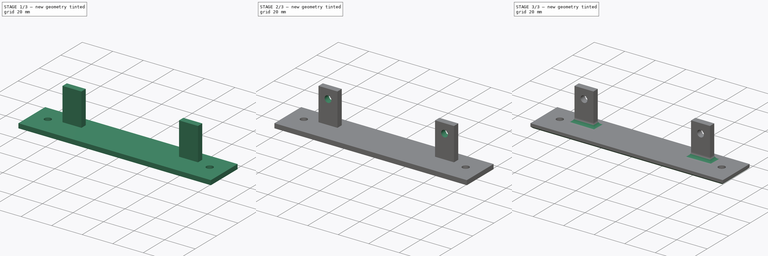
[diagram: build sequence overview — one tinted view per stage of 3, left to right]
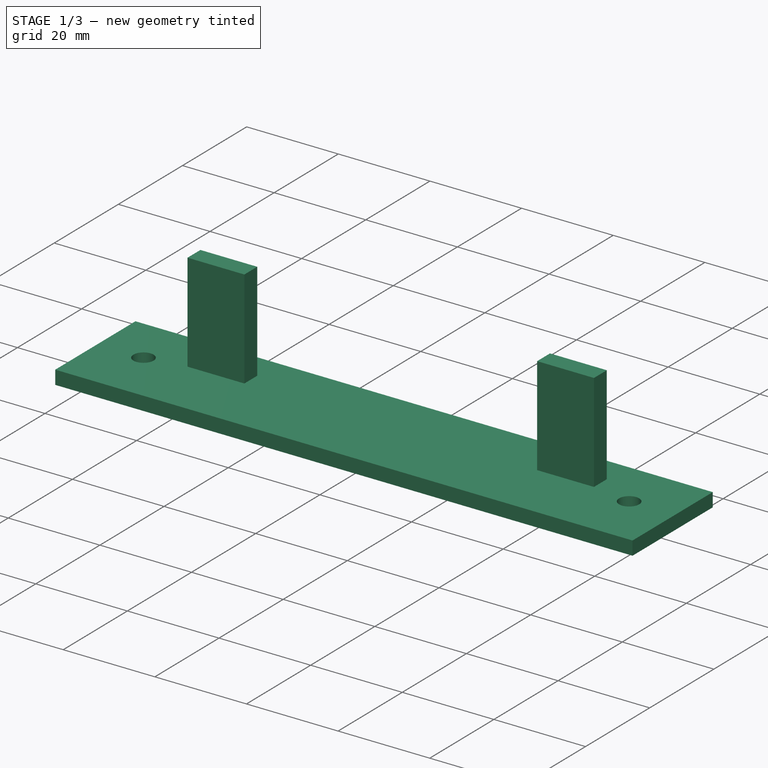
[diagram: stage 1 of 3 — iso view after this stage's code; geometry added in this stage tinted green]
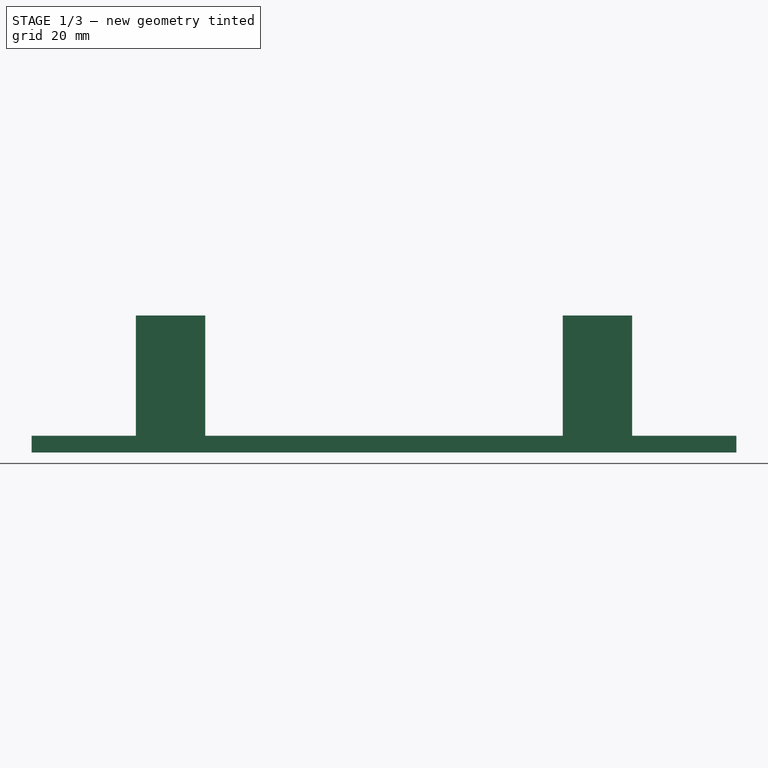
[diagram: stage 1 of 3 — front view after this stage's code; geometry added in this stage tinted green]
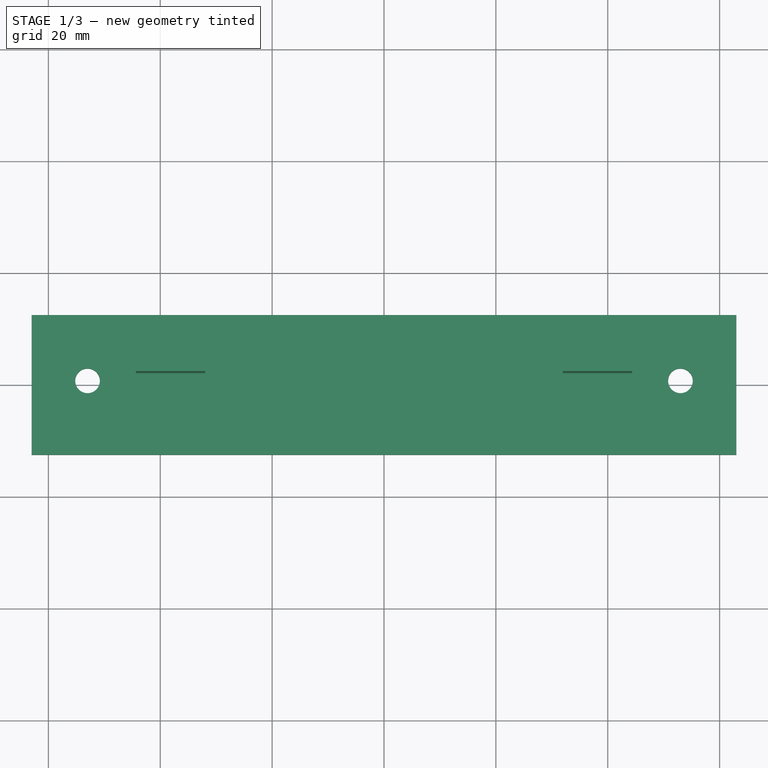
[diagram: stage 1 of 3 — top view after this stage's code; geometry added in this stage tinted green]
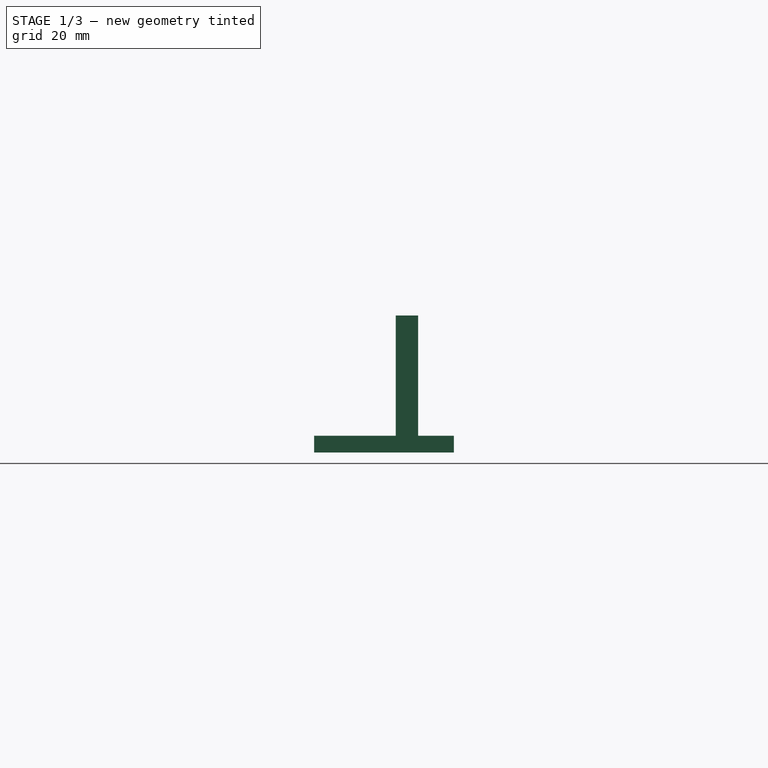
[diagram: stage 1 of 3 — right view after this stage's code; geometry added in this stage tinted green]
FCSTD DOCUMENT  (FreeCAD 0.15R4671 (Git))
Label: Card Faceplate Blank
License: All rights reserved
LicenseURL: http://en.wikipedia.org/wiki/All_rights_reserved
objects: Sketcher::SketchObject×3, PartDesign::Pad×2, PartDesign::Pocket×1, PartDesign::Mirrored×1, PartDesign::Chamfer×1, PartDesign::Fillet×1
note: 12 computed .brp shape members not serialized (recipe doc carries the construction recipe); baked Part::Feature solids carry a one-line shape summary decoded from their .brp

FEATURE [Sketcher::SketchObject] Sketch  label="Faceplate"
  sketch-geometry (6):
    g0: LineSegment StartX=-63 StartY=12.5 StartZ=0 EndX=63 EndY=12.5 EndZ=0
    g1: LineSegment StartX=63 StartY=12.5 StartZ=0 EndX=63 EndY=-12.5 EndZ=0
    g2: LineSegment StartX=63 StartY=-12.5 StartZ=0 EndX=-63 EndY=-12.5 EndZ=0
    g3: LineSegment StartX=-63 StartY=-12.5 StartZ=0 EndX=-63 EndY=12.5 EndZ=0
    g4: Circle CenterX=-53 CenterY=0.726 CenterZ=0 NormalX=0 NormalY=0 NormalZ=1 Radius=2.2
    g5: Circle CenterX=53 CenterY=0.726 CenterZ=0 NormalX=0 NormalY=0 NormalZ=1 Radius=2.2
  constraints (17):
    c: Coincident(g0,g1)
    c: Coincident(g1,g2)
    c: Coincident(g2,g3)
    c: Coincident(g3,g0)
    c: Horizontal(g0)
    c: Horizontal(g2)
    c: Vertical(g1)
    c: Vertical(g3)
    c: Distance(g3) = 25
    c: Distance(g0) = 126
    c: Symmetric(g0,g0,g-2)
    c: Symmetric(g0,g2,g-1)
    c: Equal(g5,g4)
    c: Radius(g4) = 2.2
    c: Symmetric(g4,g5,g-2)
    c: DistanceY(g0,g4) = -11.774
    c: DistanceX(g4,g0) = -10
FEATURE [PartDesign::Pad] Pad  label="Make Plate"
  Length = 3
  Length2 = 100
  Sketch = -> Sketch
  Type = 0
FEATURE [Sketcher::SketchObject] Sketch001  label="PCB Tabs"
  ExternalGeometry = -> [Pad]
  Placement = pos=(0,0,3) rot=(0,0,1;0rad)
  Support = -> Pad [Face8]
  sketch-geometry (10):
    g0: LineSegment StartX=-44.354 StartY=6.108 StartZ=0 EndX=-31.954 EndY=6.108 EndZ=0
    g1: LineSegment StartX=-31.954 StartY=6.108 StartZ=0 EndX=-31.954 EndY=2.108 EndZ=0
    g2: LineSegment StartX=-31.954 StartY=2.108 StartZ=0 EndX=-44.354 EndY=2.108 EndZ=0
    g3: LineSegment StartX=-44.354 StartY=2.108 StartZ=0 EndX=-44.354 EndY=6.108 EndZ=0
    g4: LineSegment StartX=31.954 StartY=6.108 StartZ=0 EndX=44.354 EndY=6.108 EndZ=0
    g5: LineSegment StartX=44.354 StartY=6.108 StartZ=0 EndX=44.354 EndY=2.108 EndZ=0
    g6: LineSegment StartX=44.354 StartY=2.108 StartZ=0 EndX=31.954 EndY=2.108 EndZ=0
    g7: LineSegment StartX=31.954 StartY=2.108 StartZ=0 EndX=31.954 EndY=6.108 EndZ=0
    g8: LineSegment [constr] StartX=-38.154 StartY=6.108 StartZ=0 EndX=-38.154 EndY=2.108 EndZ=0
    g9: LineSegment [constr] StartX=38.154 StartY=6.108 StartZ=0 EndX=38.154 EndY=2.108 EndZ=0
  constraints (31):
    c: Coincident(g0,g1)
    c: Coincident(g1,g2)
    c: Coincident(g2,g3)
    c: Coincident(g3,g0)
    c: Horizontal(g0)
    c: Horizontal(g2)
    c: Vertical(g1)
    c: Vertical(g3)
    c: Distance(g0) = 12.4
    c: Distance(g1) = 4
    c: Coincident(g4,g5)
    c: Coincident(g5,g6)
    c: Coincident(g6,g7)
    c: Coincident(g7,g4)
    c: Horizontal(g4)
    c: Horizontal(g6)
    c: Vertical(g5)
    c: Vertical(g7)
    c: Equal(g4,g0)
    c: Equal(g7,g1)
    c: Symmetric(g0,g4,g-2)
    c: Vertical(g8)
    c: PointOnObject(g8,g0)
    c: PointOnObject(g8,g2)
    c: Symmetric(g0,g0,g8)
    c: Vertical(g9)
    c: PointOnObject(g9,g4)
    c: PointOnObject(g9,g6)
    c: Symmetric(g4,g4,g9)
    c: Distance(g9,g8) = 76.308
    c: DistanceY(g-3,g2) = -10.392
FEATURE [PartDesign::Pad] Pad001  label="Make Tabs"
  Length = 21.497
  Length2 = 100
  Sketch = -> Sketch001
  Type = 0
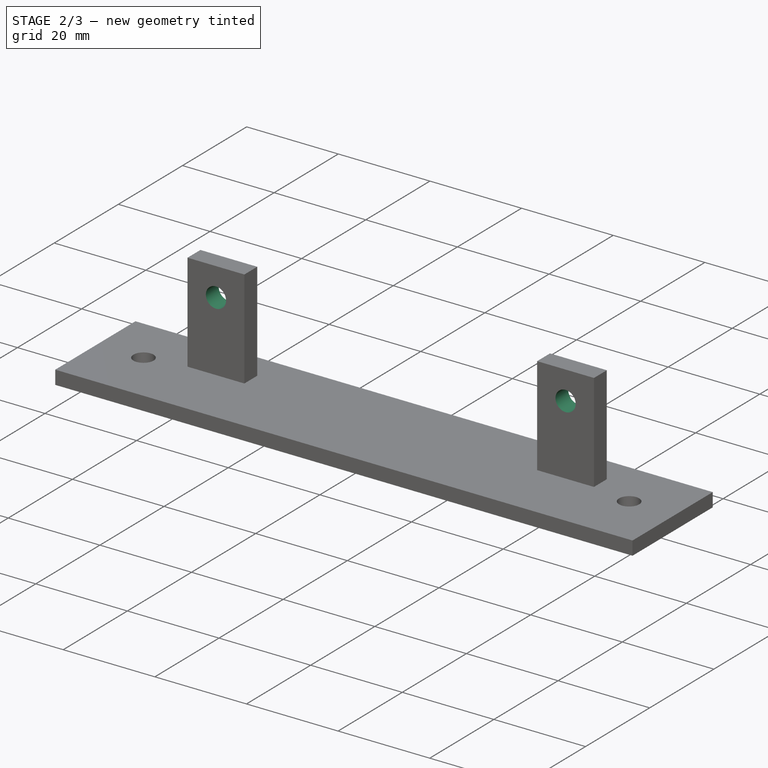
[diagram: stage 2 of 3 — iso view after this stage's code; geometry added in this stage tinted green]
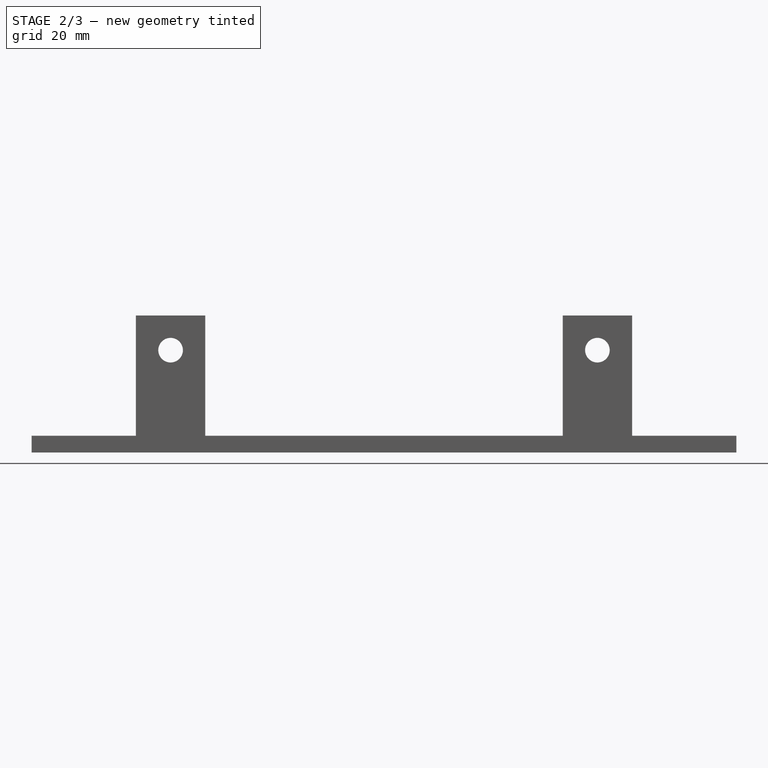
[diagram: stage 2 of 3 — front view after this stage's code; geometry added in this stage tinted green]
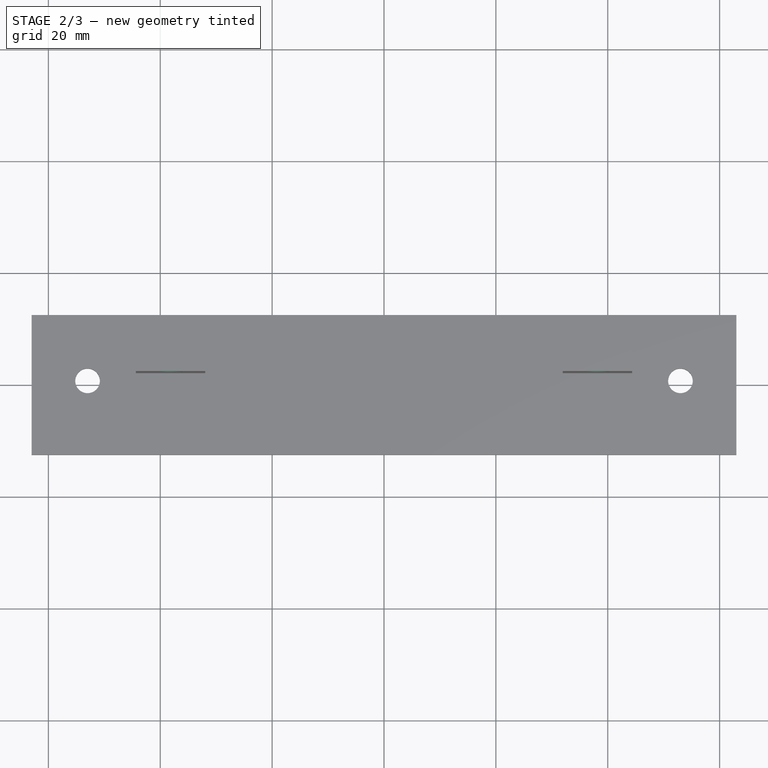
[diagram: stage 2 of 3 — top view after this stage's code; geometry added in this stage tinted green]
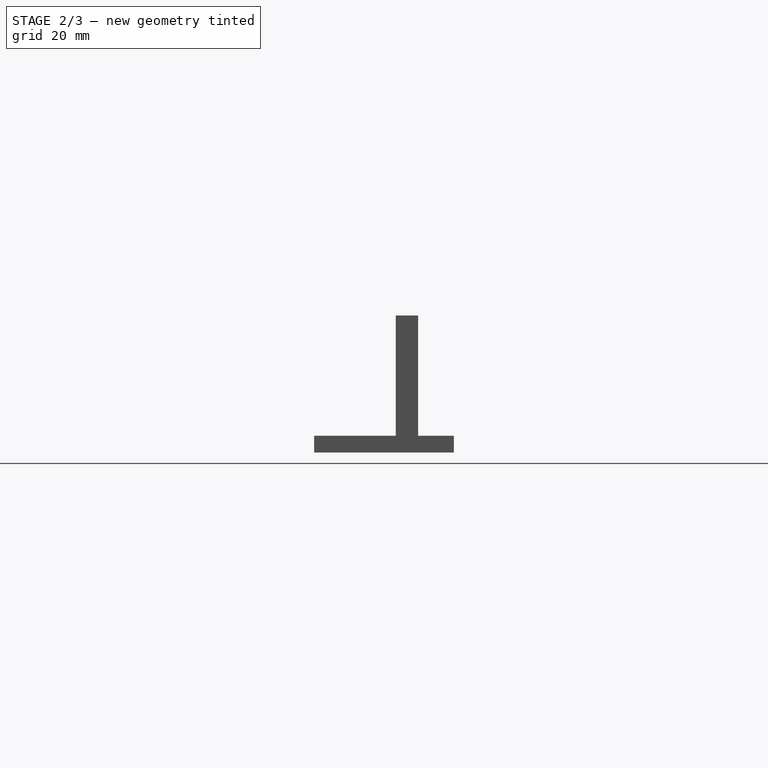
[diagram: stage 2 of 3 — right view after this stage's code; geometry added in this stage tinted green]
FEATURE [Sketcher::SketchObject] Sketch002  label="Holes for PCB Mounting"
  ExternalGeometry = -> [Pad001]
  Placement = pos=(0,2.108,0) rot=(1,0,0;1.5708rad)
  Support = -> Pad001 [Face11]
  sketch-geometry (2):
    g0: Circle CenterX=-38.154 CenterY=18.297 CenterZ=0 NormalX=0 NormalY=0 NormalZ=1 Radius=2.2
    g1: LineSegment [constr] StartX=-38.154 StartY=24.497 StartZ=0 EndX=-38.154 EndY=20.497 EndZ=0
  constraints (6):
    c: Radius(g0) = 2.2
    c: Vertical(g1)
    c: Perpendicular(g1,g0) = 4.71239
    c: PointOnObject(g1,g-3)
    c: Symmetric(g-3,g-3,g1)
    c: DistanceY(g1,g1) = 4
FEATURE [PartDesign::Pocket] Pocket  label="Add Hole"
  Length = 5
  Sketch = -> Sketch002
  Type = 2
FEATURE [PartDesign::Mirrored] Mirrored  label="Add second hole too"
  MirrorPlane = -> Sketch002 [V_Axis]
  Originals = -> [Pocket]
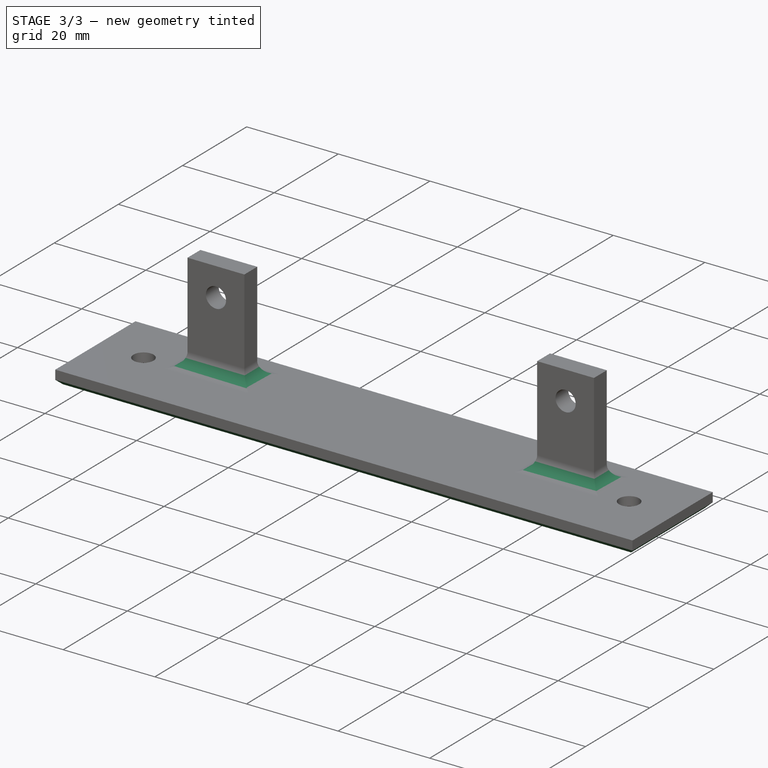
[diagram: stage 3 of 3 — iso view after this stage's code; geometry added in this stage tinted green]
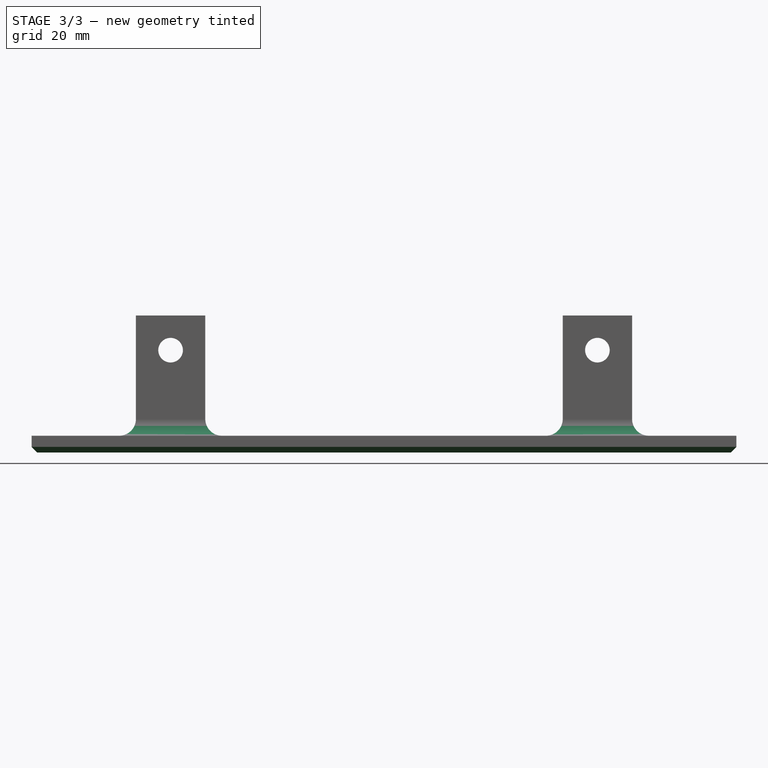
[diagram: stage 3 of 3 — front view after this stage's code; geometry added in this stage tinted green]
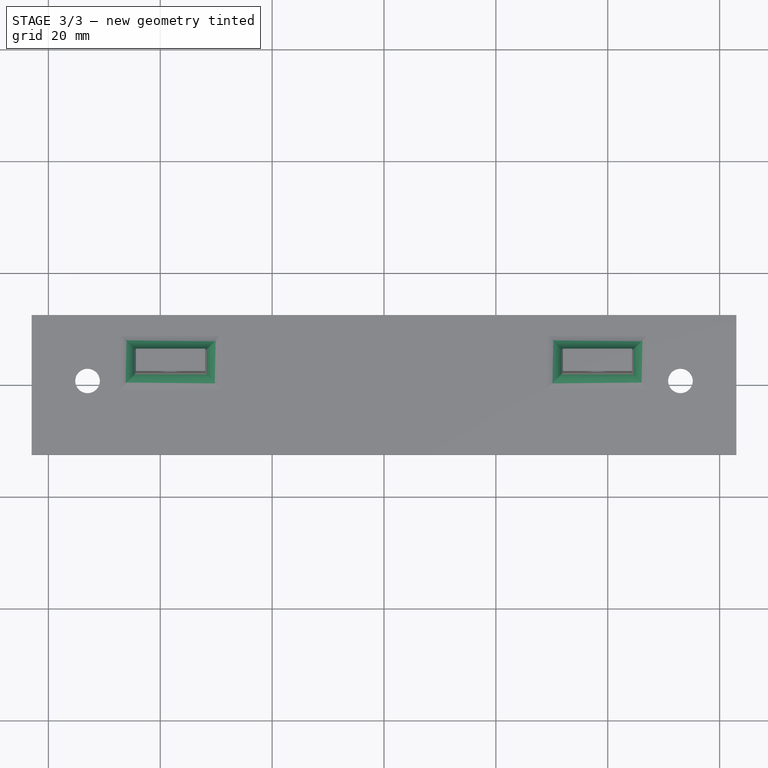
[diagram: stage 3 of 3 — top view after this stage's code; geometry added in this stage tinted green]
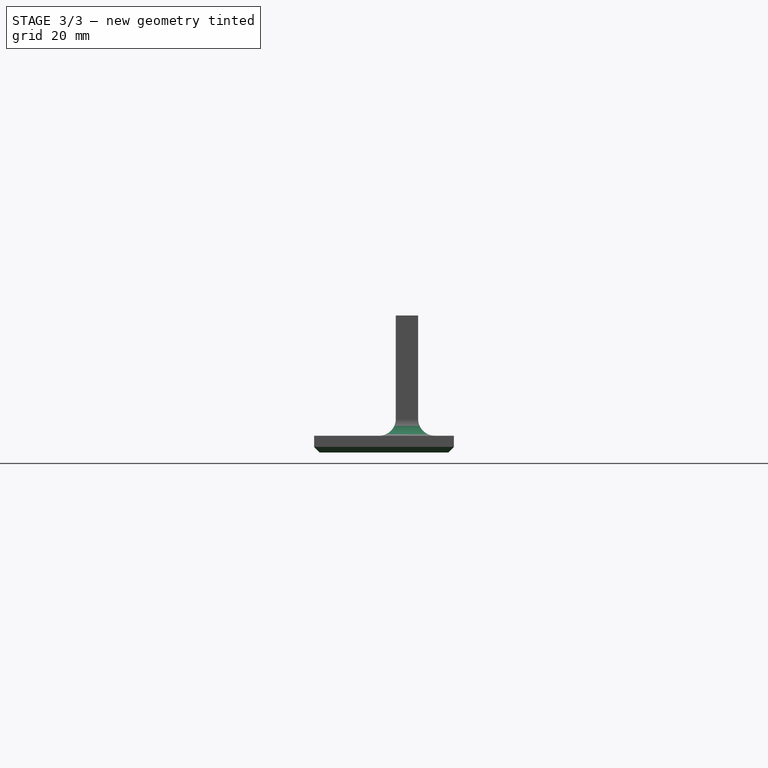
[diagram: stage 3 of 3 — right view after this stage's code; geometry added in this stage tinted green]
FEATURE [PartDesign::Chamfer] Chamfer  label="Finish Viewing side"
  Base = -> Mirrored [Edge3,Edge9,Edge11,Edge6,Edge12,Edge13]
  Size = 1
FEATURE [PartDesign::Fillet] Fillet
  Base = -> Chamfer [Edge21,Edge20,Edge19,Edge22,Edge16,Edge17,Edge14,Edge15]
  Radius = 3
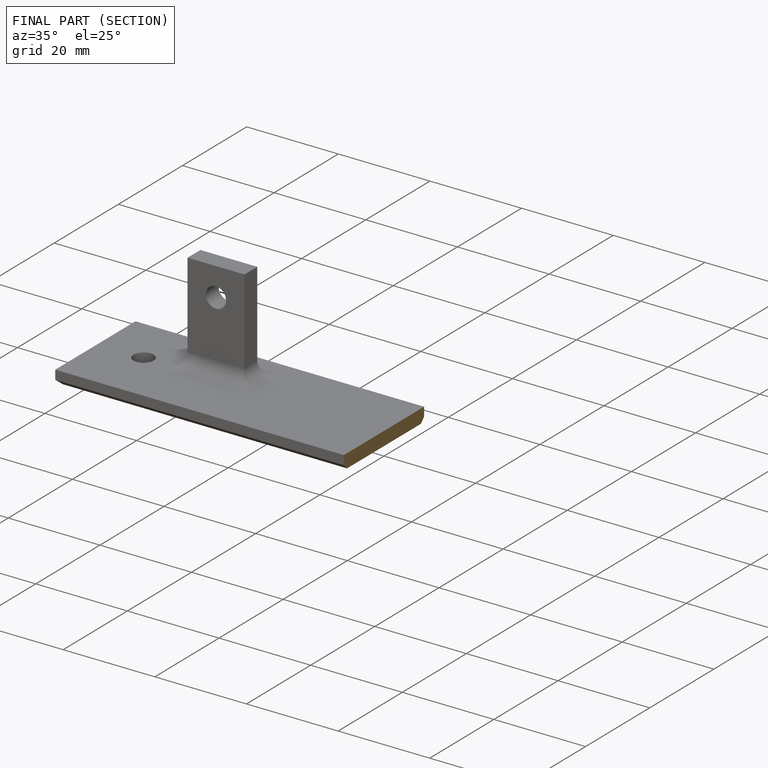
[diagram: finished part — half-section view (interior)]
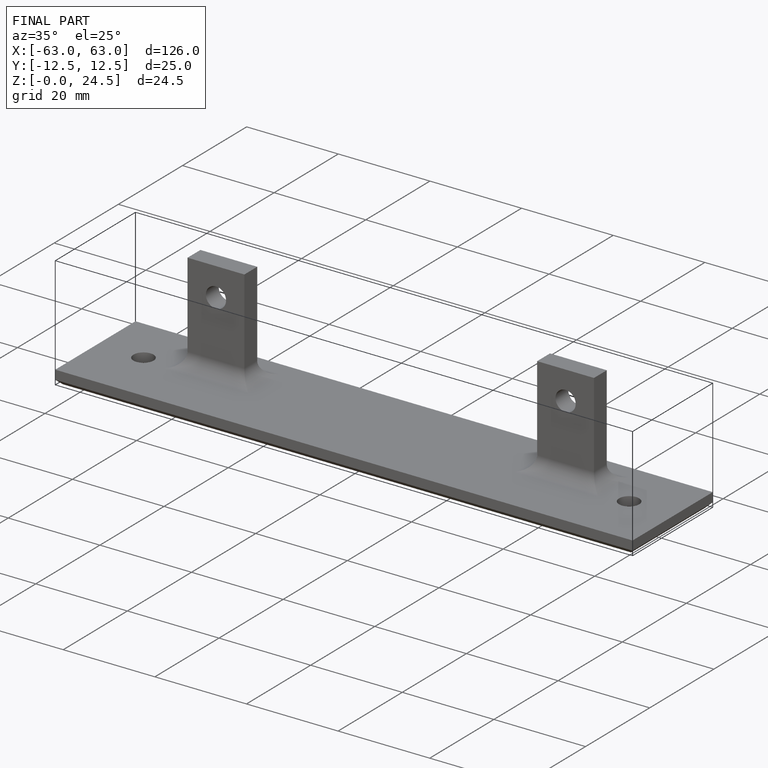
[diagram: finished part — iso view with bounding-box wireframe]
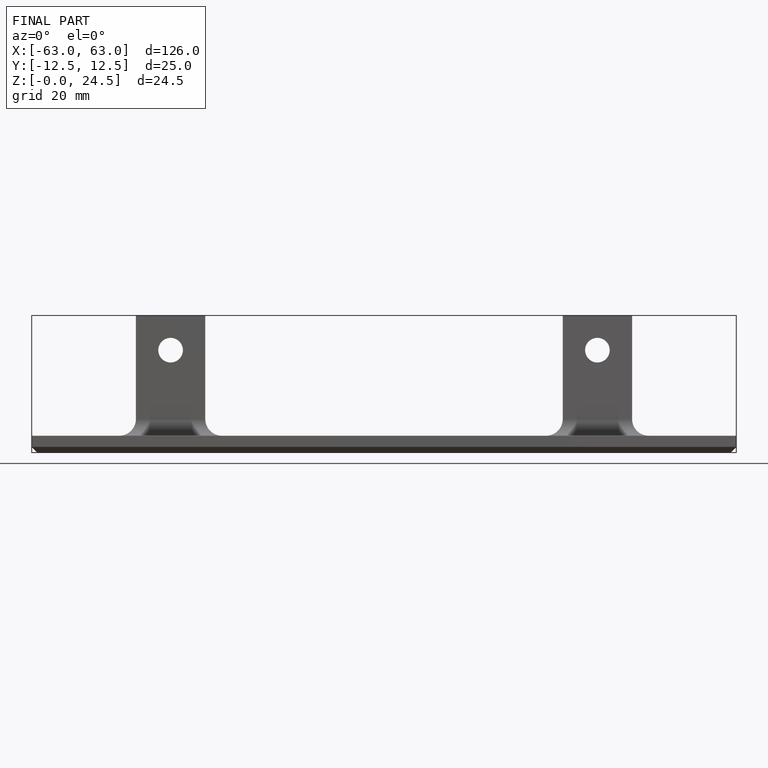
[diagram: finished part — front view with bounding-box wireframe]
